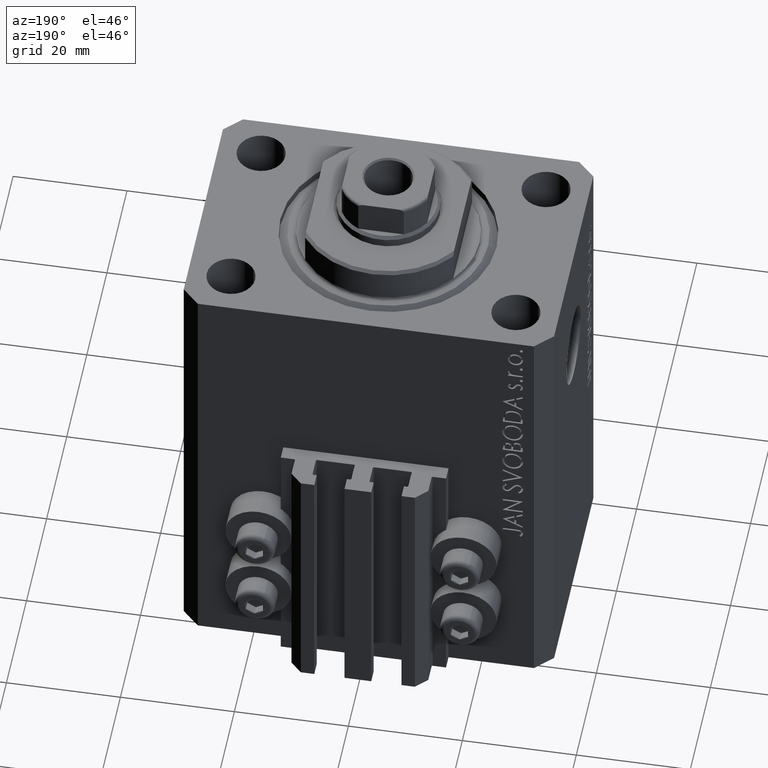
[diagram: clean part render]
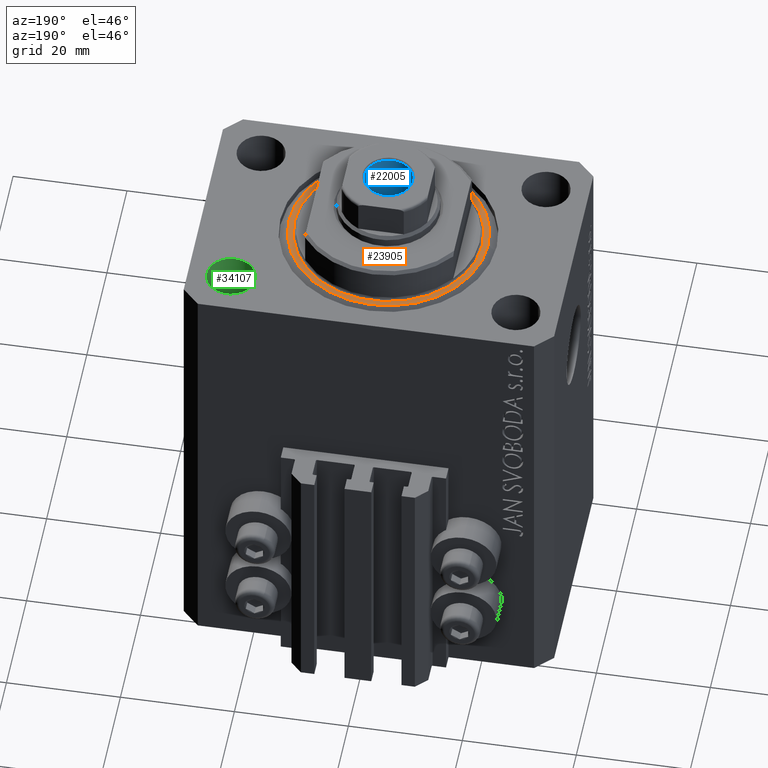
[diagram: same view with three faces highlighted in distinct colors, each labeled with its STEP entity id]
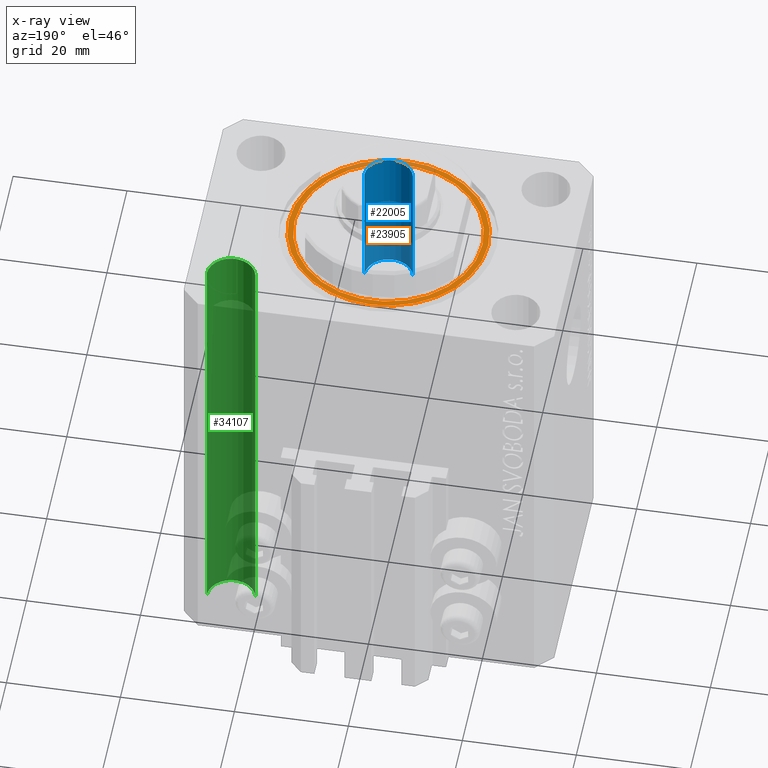
[diagram: x-ray of the same camera — body ghosted, the three highlighted faces saturated]
A machine part, auxiliary view with three faces highlighted in distinct colors.
The next image is the same camera in x-ray (body ghosted, the three faces saturated) — at least one of them is partly hidden behind the body in this view.
Their STEP definitions:

[orange] entity #23905 — the highlighted planar face has unit normal (0, 0, -1).
#396 = DIRECTION ( 'NONE',  ( 1.000000000000000000, 0.000000000000000000, 0.000000000000000000 ) ) ;
#644 = AXIS2_PLACEMENT_3D ( 'NONE', #25464, #6756, #43466 ) ;
#3470 = VERTEX_POINT ( 'NONE', #19205 ) ;
#3592 = EDGE_CURVE ( 'NONE', #3470, #29412, #33365, .T. ) ;
#4238 = VERTEX_POINT ( 'NONE', #7909 ) ;
#4424 = DIRECTION ( 'NONE',  ( 1.000000000000000000, 0.000000000000000000, -0.000000000000000000 ) ) ;
#5210 = AXIS2_PLACEMENT_3D ( 'NONE', #22275, #36905, #40745 ) ;
#6141 = DIRECTION ( 'NONE',  ( 1.000000000000000000, 0.000000000000000000, 0.000000000000000000 ) ) ;
#6756 = DIRECTION ( 'NONE',  ( 0.000000000000000000, 0.000000000000000000, 1.000000000000000000 ) ) ;
#7909 = CARTESIAN_POINT ( 'NONE',  ( 16.50000000000000000, 0.000000000000000000, 2.168404344971008868E-16 ) ) ;
#9862 = CIRCLE ( 'NONE', #644, 16.50000000000000000 ) ;
#11626 = FACE_OUTER_BOUND ( 'NONE', #21756, .T. ) ;
#13469 = AXIS2_PLACEMENT_3D ( 'NONE', #32065, #24393, #6141 ) ;
#13892 = ORIENTED_EDGE ( 'NONE', *, *, #28130, .T. ) ;
#14811 = CARTESIAN_POINT ( 'NONE',  ( 0.000000000000000000, 0.000000000000000000, 0.000000000000000000 ) ) ;
#15293 = DIRECTION ( 'NONE',  ( 0.000000000000000000, 0.000000000000000000, 1.000000000000000000 ) ) ;
#15755 = EDGE_CURVE ( 'NONE', #4238, #39857, #9862, .T. ) ;
#16059 = ORIENTED_EDGE ( 'NONE', *, *, #15755, .T. ) ;
#17195 = CIRCLE ( 'NONE', #43994, 16.50000000000000000 ) ;
#17637 = CARTESIAN_POINT ( 'NONE',  ( -17.49999999999999289, 2.234980408443919215E-15, 0.000000000000000000 ) ) ;
#19205 = CARTESIAN_POINT ( 'NONE',  ( 17.49999999999999289, 0.000000000000000000, 0.000000000000000000 ) ) ;
#20990 = EDGE_LOOP ( 'NONE', ( #16059, #13892 ) ) ;
#21756 = EDGE_LOOP ( 'NONE', ( #45383, #45375 ) ) ;
#22275 = CARTESIAN_POINT ( 'NONE',  ( 0.000000000000000000, 0.000000000000000000, 0.000000000000000000 ) ) ;
#23905 = ADVANCED_FACE ( 'NONE', ( #37073, #11626 ), #30105, .F. ) ;
#24393 = DIRECTION ( 'NONE',  ( -0.000000000000000000, -0.000000000000000000, -1.000000000000000000 ) ) ;
#25464 = CARTESIAN_POINT ( 'NONE',  ( 0.000000000000000000, 0.000000000000000000, 0.000000000000000000 ) ) ;
#25918 = CIRCLE ( 'NONE', #5210, 17.49999999999999289 ) ;
#28130 = EDGE_CURVE ( 'NONE', #39857, #4238, #17195, .T. ) ;
#29412 = VERTEX_POINT ( 'NONE', #17637 ) ;
#30105 = PLANE ( 'NONE',  #38079 ) ;
#32065 = CARTESIAN_POINT ( 'NONE',  ( 0.000000000000000000, 0.000000000000000000, 0.000000000000000000 ) ) ;
#33365 = CIRCLE ( 'NONE', #13469, 17.49999999999999289 ) ;
#36905 = DIRECTION ( 'NONE',  ( -0.000000000000000000, -0.000000000000000000, -1.000000000000000000 ) ) ;
#37073 = FACE_BOUND ( 'NONE', #20990, .T. ) ;
#37315 = CARTESIAN_POINT ( 'NONE',  ( 0.000000000000000000, 0.000000000000000000, 0.000000000000000000 ) ) ;
#38079 = AXIS2_PLACEMENT_3D ( 'NONE', #37315, #44266, #4424 ) ;
#39857 = VERTEX_POINT ( 'NONE', #44053 ) ;
#40745 = DIRECTION ( 'NONE',  ( 1.000000000000000000, 0.000000000000000000, 0.000000000000000000 ) ) ;
#42748 = EDGE_CURVE ( 'NONE', #29412, #3470, #25918, .T. ) ;
#43466 = DIRECTION ( 'NONE',  ( 1.000000000000000000, 0.000000000000000000, 0.000000000000000000 ) ) ;
#43994 = AXIS2_PLACEMENT_3D ( 'NONE', #14811, #15293, #396 ) ;
#44053 = CARTESIAN_POINT ( 'NONE',  ( -16.50000000000000000, 2.020667218593133100E-15, 2.168404344971008868E-16 ) ) ;
#44266 = DIRECTION ( 'NONE',  ( 0.000000000000000000, 0.000000000000000000, 1.000000000000000000 ) ) ;
#45375 = ORIENTED_EDGE ( 'NONE', *, *, #42748, .T. ) ;
#45383 = ORIENTED_EDGE ( 'NONE', *, *, #3592, .T. ) ;

[blue] entity #22005 — the highlighted cylindrical surface (edge-blend (fillet) strip) has radius 4.25 mm, axis along (0, 0, 1).
#857 = EDGE_CURVE ( 'NONE', #11397, #34182, #25457, .T. ) ;
#2231 = VECTOR ( 'NONE', #45244, 1000.000000000000000 ) ;
#4195 = EDGE_LOOP ( 'NONE', ( #36025, #41994, #31547, #13296 ) ) ;
#5164 = DIRECTION ( 'NONE',  ( 1.000000000000000000, 0.000000000000000000, 0.000000000000000000 ) ) ;
#5573 = VERTEX_POINT ( 'NONE', #32155 ) ;
#5671 = DIRECTION ( 'NONE',  ( -0.000000000000000000, -0.000000000000000000, 1.000000000000000000 ) ) ;
#6078 = CIRCLE ( 'NONE', #28330, 4.249999999999994671 ) ;
#8956 = DIRECTION ( 'NONE',  ( -0.000000000000000000, -0.000000000000000000, 1.000000000000000000 ) ) ;
#9197 = FACE_OUTER_BOUND ( 'NONE', #4195, .T. ) ;
#9287 = LINE ( 'NONE', #23926, #40203 ) ;
#11397 = VERTEX_POINT ( 'NONE', #24692 ) ;
#12084 = DIRECTION ( 'NONE',  ( 1.000000000000000000, 0.000000000000000000, 0.000000000000000000 ) ) ;
#13296 = ORIENTED_EDGE ( 'NONE', *, *, #29132, .F. ) ;
#14806 = DIRECTION ( 'NONE',  ( -0.000000000000000000, -0.000000000000000000, 1.000000000000000000 ) ) ;
#17838 = AXIS2_PLACEMENT_3D ( 'NONE', #38059, #37596, #5164 ) ;
#18283 = VERTEX_POINT ( 'NONE', #30297 ) ;
#21317 = CARTESIAN_POINT ( 'NONE',  ( 0.000000000000000000, 0.000000000000000000, 62.10000000000000853 ) ) ;
#22005 = ADVANCED_FACE ( 'NONE', ( #9197 ), #34638, .F. ) ;
#23836 = CARTESIAN_POINT ( 'NONE',  ( 0.000000000000000000, 0.000000000000000000, 87.10000000000000853 ) ) ;
#23926 = CARTESIAN_POINT ( 'NONE',  ( 4.249999999999996447, 0.000000000000000000, 87.10000000000000853 ) ) ;
#24692 = CARTESIAN_POINT ( 'NONE',  ( -4.249999999999996447, 5.204748896376247741E-16, 86.80000000000002558 ) ) ;
#25457 = CIRCLE ( 'NONE', #17838, 4.249999999999996447 ) ;
#26259 = AXIS2_PLACEMENT_3D ( 'NONE', #23836, #8956, #12084 ) ;
#28330 = AXIS2_PLACEMENT_3D ( 'NONE', #21317, #14806, #35947 ) ;
#29132 = EDGE_CURVE ( 'NONE', #18283, #34182, #9287, .T. ) ;
#30297 = CARTESIAN_POINT ( 'NONE',  ( 4.249999999999994671, 0.000000000000000000, 62.10000000000000853 ) ) ;
#30620 = LINE ( 'NONE', #37594, #2231 ) ;
#31547 = ORIENTED_EDGE ( 'NONE', *, *, #857, .T. ) ;
#32155 = CARTESIAN_POINT ( 'NONE',  ( -4.249999999999994671, 5.204748896376244783E-16, 62.10000000000000853 ) ) ;
#34182 = VERTEX_POINT ( 'NONE', #43701 ) ;
#34638 = CYLINDRICAL_SURFACE ( 'NONE', #26259, 4.249999999999996447 ) ;
#35947 = DIRECTION ( 'NONE',  ( 1.000000000000000000, 0.000000000000000000, 0.000000000000000000 ) ) ;
#36025 = ORIENTED_EDGE ( 'NONE', *, *, #44737, .F. ) ;
#37594 = CARTESIAN_POINT ( 'NONE',  ( -4.249999999999996447, 5.204748896376247741E-16, 87.10000000000000853 ) ) ;
#37596 = DIRECTION ( 'NONE',  ( 0.000000000000000000, 0.000000000000000000, 1.000000000000000000 ) ) ;
#38059 = CARTESIAN_POINT ( 'NONE',  ( 0.000000000000000000, 0.000000000000000000, 86.80000000000002558 ) ) ;
#40203 = VECTOR ( 'NONE', #5671, 1000.000000000000000 ) ;
#41994 = ORIENTED_EDGE ( 'NONE', *, *, #44247, .T. ) ;
#43701 = CARTESIAN_POINT ( 'NONE',  ( 4.249999999999996447, 0.000000000000000000, 86.80000000000002558 ) ) ;
#44247 = EDGE_CURVE ( 'NONE', #5573, #11397, #30620, .T. ) ;
#44737 = EDGE_CURVE ( 'NONE', #5573, #18283, #6078, .T. ) ;
#45244 = DIRECTION ( 'NONE',  ( -0.000000000000000000, -0.000000000000000000, 1.000000000000000000 ) ) ;

[green] entity #34107 — the highlighted cylindrical surface (edge-blend (fillet) strip) has radius 4.25 mm, axis along (0, 0, 1).
#2335 = CARTESIAN_POINT ( 'NONE',  ( 29.24999999995729283, 14.99999999999999289, -80.00000000000000000 ) ) ;
#2375 = LINE ( 'NONE', #45571, #30539 ) ;
#3365 = VECTOR ( 'NONE', #13924, 1000.000000000000000 ) ;
#7504 = VERTEX_POINT ( 'NONE', #34758 ) ;
#7536 = DIRECTION ( 'NONE',  ( -0.000000000000000000, -0.000000000000000000, -1.000000000000000000 ) ) ;
#7838 = EDGE_CURVE ( 'NONE', #20020, #7504, #15106, .T. ) ;
#12816 = AXIS2_PLACEMENT_3D ( 'NONE', #44554, #22972, #22732 ) ;
#13202 = CARTESIAN_POINT ( 'NONE',  ( 20.75000000004271072, 14.99999999999999289, -80.00000000000000000 ) ) ;
#13924 = DIRECTION ( 'NONE',  ( -0.000000000000000000, -0.000000000000000000, 1.000000000000000000 ) ) ;
#15106 = CIRCLE ( 'NONE', #12816, 4.249999999957291053 ) ;
#16496 = AXIS2_PLACEMENT_3D ( 'NONE', #35565, #39414, #42287 ) ;
#18020 = ORIENTED_EDGE ( 'NONE', *, *, #30939, .T. ) ;
#19100 = ORIENTED_EDGE ( 'NONE', *, *, #7838, .T. ) ;
#20020 = VERTEX_POINT ( 'NONE', #38685 ) ;
#20706 = FACE_OUTER_BOUND ( 'NONE', #37895, .T. ) ;
#22732 = DIRECTION ( 'NONE',  ( 1.000000000000000000, 0.000000000000000000, 0.000000000000000000 ) ) ;
#22972 = DIRECTION ( 'NONE',  ( 0.000000000000000000, 0.000000000000000000, 1.000000000000000000 ) ) ;
#25779 = CARTESIAN_POINT ( 'NONE',  ( 25.00000000000000000, 14.99999999999999289, -80.00000000000000000 ) ) ;
#26577 = VERTEX_POINT ( 'NONE', #13202 ) ;
#26693 = EDGE_CURVE ( 'NONE', #26577, #20020, #31677, .T. ) ;
#29032 = CARTESIAN_POINT ( 'NONE',  ( 20.75000000004271072, 14.99999999999999289, -92.02081528028548973 ) ) ;
#30277 = ORIENTED_EDGE ( 'NONE', *, *, #26693, .T. ) ;
#30539 = VECTOR ( 'NONE', #38627, 1000.000000000000000 ) ;
#30939 = EDGE_CURVE ( 'NONE', #44665, #26577, #42457, .T. ) ;
#31434 = ORIENTED_EDGE ( 'NONE', *, *, #46678, .F. ) ;
#31677 = LINE ( 'NONE', #29032, #3365 ) ;
#34107 = ADVANCED_FACE ( 'NONE', ( #20706 ), #34850, .F. ) ;
#34758 = CARTESIAN_POINT ( 'NONE',  ( 29.24999999995729283, 14.99999999999999289, 0.000000000000000000 ) ) ;
#34850 = CYLINDRICAL_SURFACE ( 'NONE', #16496, 4.249999999957291053 ) ;
#35565 = CARTESIAN_POINT ( 'NONE',  ( 25.00000000000000000, 14.99999999999999289, -92.02081528028548973 ) ) ;
#37895 = EDGE_LOOP ( 'NONE', ( #18020, #30277, #19100, #31434 ) ) ;
#38627 = DIRECTION ( 'NONE',  ( -0.000000000000000000, -0.000000000000000000, 1.000000000000000000 ) ) ;
#38685 = CARTESIAN_POINT ( 'NONE',  ( 20.75000000004271072, 14.99999999999999289, 0.000000000000000000 ) ) ;
#39414 = DIRECTION ( 'NONE',  ( -0.000000000000000000, -0.000000000000000000, 1.000000000000000000 ) ) ;
#39429 = AXIS2_PLACEMENT_3D ( 'NONE', #25779, #7536, #44702 ) ;
#42287 = DIRECTION ( 'NONE',  ( 1.000000000000000000, 0.000000000000000000, 0.000000000000000000 ) ) ;
#42457 = CIRCLE ( 'NONE', #39429, 4.249999999957291053 ) ;
#44554 = CARTESIAN_POINT ( 'NONE',  ( 25.00000000000000000, 14.99999999999999289, 0.000000000000000000 ) ) ;
#44665 = VERTEX_POINT ( 'NONE', #2335 ) ;
#44702 = DIRECTION ( 'NONE',  ( 1.000000000000000000, 0.000000000000000000, 0.000000000000000000 ) ) ;
#45571 = CARTESIAN_POINT ( 'NONE',  ( 29.24999999995729283, 14.99999999999999289, -92.02081528028548973 ) ) ;
#46678 = EDGE_CURVE ( 'NONE', #44665, #7504, #2375, .T. ) ;